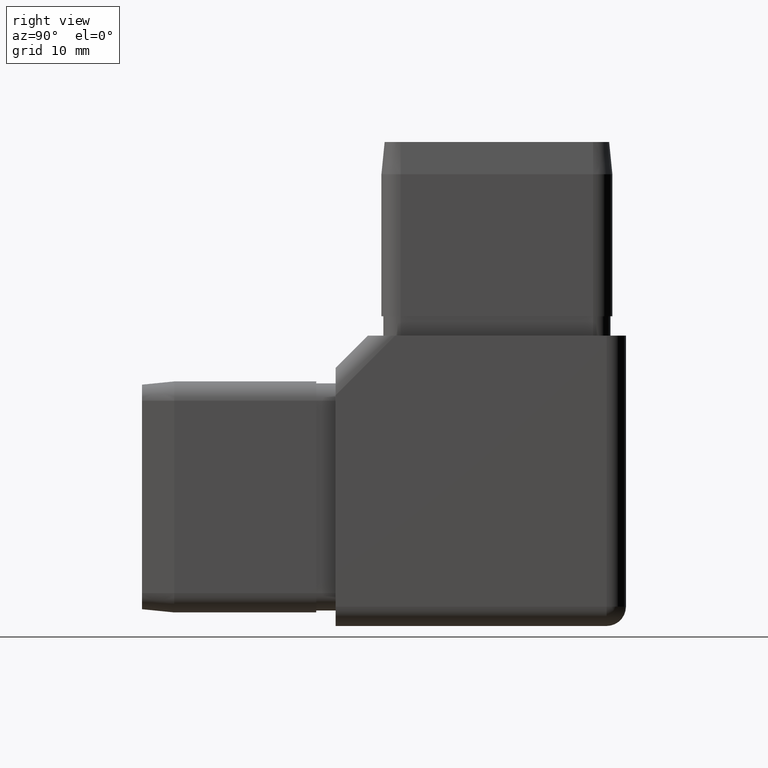
[diagram: clean part render]
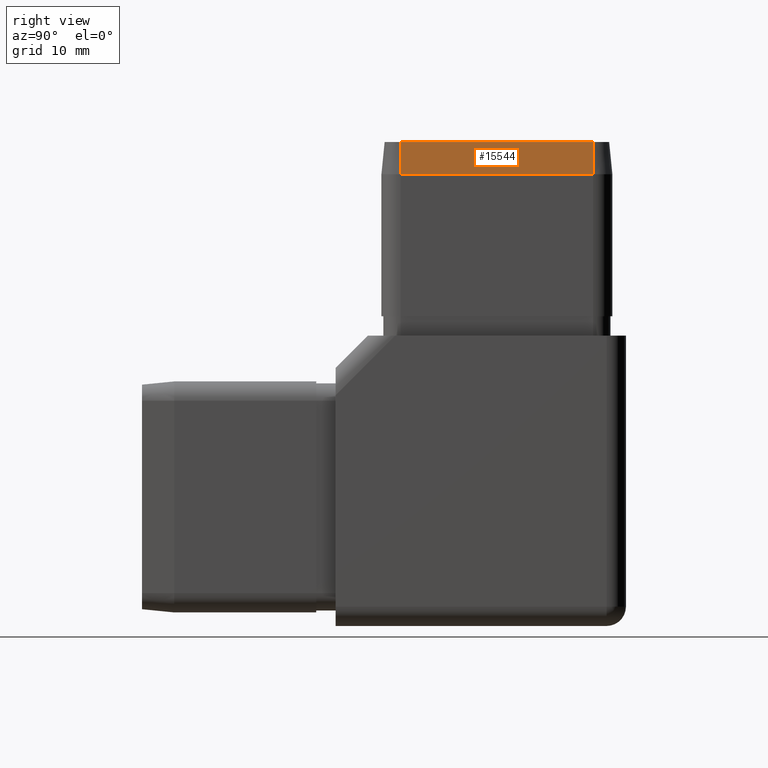
[diagram: same view with one face highlighted and labeled with its STEP entity id]
A machine part, right view. The second image highlights one B-rep face of the part: STEP entity #15544.
In plain terms, the highlighted planar face has unit normal (-0.995, -0, -0.0995).
Its self-contained STEP definition (entity closure, byte-faithful):
#129 = EDGE_CURVE ( 'NONE', #23871, #19225, #8341, .T. ) ;
#226 = DIRECTION ( 'NONE',  ( -0.09950371902099822100, 0.0000000000000000000, 0.9950371902099891500 ) ) ;
#574 = ORIENTED_EDGE ( 'NONE', *, *, #129, .T. ) ;
#1969 = CARTESIAN_POINT ( 'NONE',  ( 17.89999999999999900, 17.39999999999999900, 47.49999999999999300 ) ) ;
#3169 = CARTESIAN_POINT ( 'NONE',  ( 17.40000000000000600, 17.39999999999999900, 52.50000000000000000 ) ) ;
#4438 = LINE ( 'NONE', #1969, #4712 ) ;
#4712 = VECTOR ( 'NONE', #15146, 1000.000000000000000 ) ;
#5152 = DIRECTION ( 'NONE',  ( 1.164243943608596200E-016, -1.000000000000000000, 0.0000000000000000000 ) ) ;
#5159 = DIRECTION ( 'NONE',  ( 0.09950371902099822100, 6.092845550116154400E-018, -0.9950371902099891500 ) ) ;
#5670 = EDGE_CURVE ( 'NONE', #14357, #23871, #21781, .T. ) ;
#5809 = VECTOR ( 'NONE', #5152, 1000.000000000000000 ) ;
#6710 = EDGE_CURVE ( 'NONE', #16034, #19225, #4438, .T. ) ;
#7542 = CARTESIAN_POINT ( 'NONE',  ( 17.89999999999999900, 17.39999999999999900, 47.49999999999999300 ) ) ;
#8259 = VECTOR ( 'NONE', #5159, 1000.000000000000200 ) ;
#8341 = LINE ( 'NONE', #12225, #11309 ) ;
#8489 = DIRECTION ( 'NONE',  ( 0.09950371902099822100, 6.092845550116154400E-018, -0.9950371902099891500 ) ) ;
#9165 = FACE_OUTER_BOUND ( 'NONE', #23173, .T. ) ;
#9393 = EDGE_CURVE ( 'NONE', #14357, #16034, #9726, .T. ) ;
#9726 = LINE ( 'NONE', #18490, #8259 ) ;
#9753 = ORIENTED_EDGE ( 'NONE', *, *, #9393, .F. ) ;
#11309 = VECTOR ( 'NONE', #8489, 1000.000000000000200 ) ;
#12225 = CARTESIAN_POINT ( 'NONE',  ( 17.40000000000000900, -12.39999999999998400, 52.50000000000000000 ) ) ;
#13362 = ORIENTED_EDGE ( 'NONE', *, *, #5670, .T. ) ;
#14357 = VERTEX_POINT ( 'NONE', #15116 ) ;
#15116 = CARTESIAN_POINT ( 'NONE',  ( 17.40000000000000600, 17.39999999999999900, 52.50000000000000000 ) ) ;
#15146 = DIRECTION ( 'NONE',  ( 1.164243943608596200E-016, -1.000000000000000000, 0.0000000000000000000 ) ) ;
#15215 = CARTESIAN_POINT ( 'NONE',  ( 17.90000000000000200, -12.39999999999998400, 47.49999999999999300 ) ) ;
#15422 = CARTESIAN_POINT ( 'NONE',  ( 17.40000000000000600, 17.39999999999999900, 52.50000000000000000 ) ) ;
#15544 = ADVANCED_FACE ( 'NONE', ( #9165 ), #21061, .F. ) ;
#16034 = VERTEX_POINT ( 'NONE', #7542 ) ;
#18490 = CARTESIAN_POINT ( 'NONE',  ( 17.40000000000000600, 17.39999999999999900, 52.50000000000000000 ) ) ;
#18520 = CARTESIAN_POINT ( 'NONE',  ( 17.40000000000000900, -12.39999999999998400, 52.50000000000000000 ) ) ;
#19225 = VERTEX_POINT ( 'NONE', #15215 ) ;
#20892 = DIRECTION ( 'NONE',  ( -0.9950371902099892600, -1.158466022367295000E-016, -0.09950371902099823500 ) ) ;
#21061 = PLANE ( 'NONE',  #24373 ) ;
#21781 = LINE ( 'NONE', #3169, #5809 ) ;
#23134 = ORIENTED_EDGE ( 'NONE', *, *, #6710, .F. ) ;
#23173 = EDGE_LOOP ( 'NONE', ( #9753, #13362, #574, #23134 ) ) ;
#23871 = VERTEX_POINT ( 'NONE', #18520 ) ;
#24373 = AXIS2_PLACEMENT_3D ( 'NONE', #15422, #20892, #226 ) ;